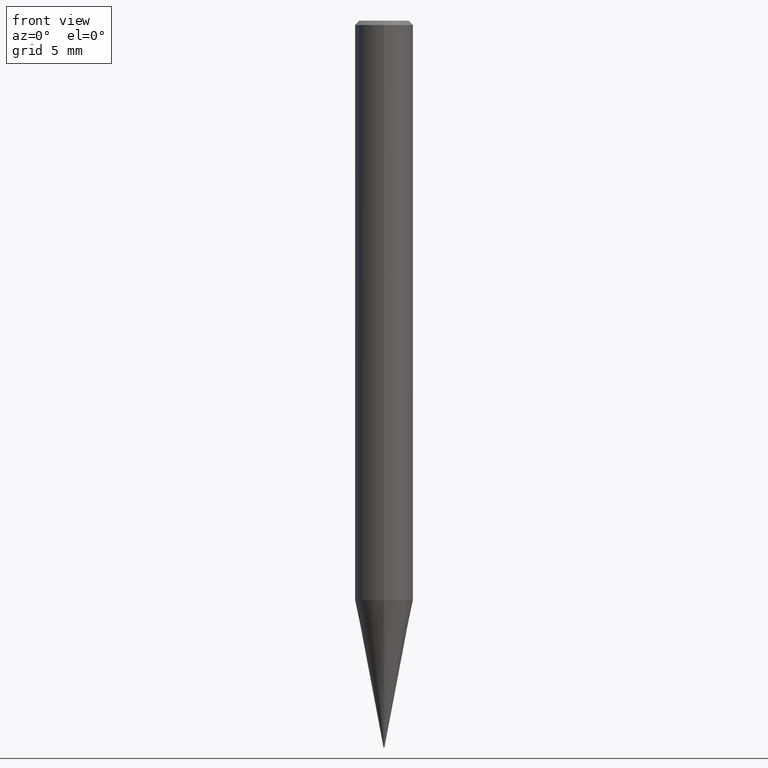
[diagram: clean part render]
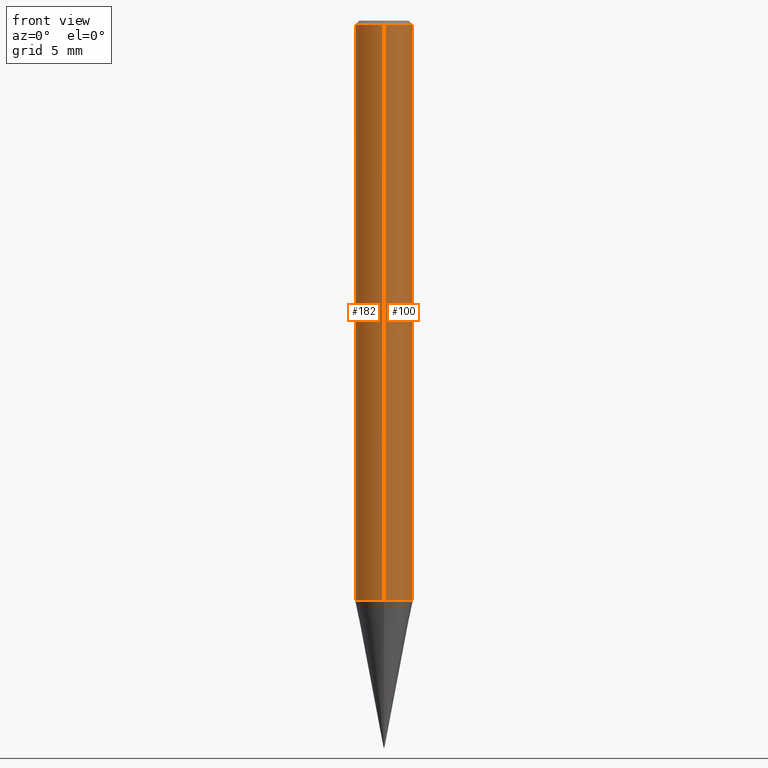
[diagram: same view with one multi-face feature highlighted, each face labeled with its STEP entity id]
A machine part, front view. The highlighted faces form ONE feature: a constant-radius fillet chain: 2 tangent blend faces with common blend radius 2 mm. The faces share edges in the B-rep.
Their STEP definitions:
[1] entity #100 (Cylinder):
#92=EDGE_CURVE('',#166,#150,#219,.T.);
#100=ADVANCED_FACE('',(#227),#228,.T.);
#104=EDGE_CURVE('',#166,#120,#232,.T.);
#106=VERTEX_POINT('',#234);
#120=VERTEX_POINT('',#249);
#124=EDGE_CURVE('',#106,#150,#253,.T.);
#150=VERTEX_POINT('',#285);
#158=EDGE_CURVE('',#120,#106,#293,.T.);
#166=VERTEX_POINT('',#301);
#219=CIRCLE('',#354,2.0);
#227=FACE_OUTER_BOUND('',#364,.T.);
#228=CYLINDRICAL_SURFACE('',#365,2.0);
#232=LINE('',#370,#371);
#234=CARTESIAN_POINT('',(2.44921270764475E-016,-2.0,-39.868));
#249=CARTESIAN_POINT('',(0.0,2.0,-39.868));
#253=LINE('',#396,#397);
#285=CARTESIAN_POINT('',(2.44921270764475E-016,-2.0,-0.299999999999997));
#293=CIRCLE('',#447,2.0);
#301=CARTESIAN_POINT('',(0.0,2.0,-0.299999999999997));
#354=AXIS2_PLACEMENT_3D('',#508,#509,#510);
#364=EDGE_LOOP('',(#517,#518,#519,#520));
#365=AXIS2_PLACEMENT_3D('',#521,#522,#523);
#370=CARTESIAN_POINT('',(-2.44921270764475E-016,2.0,-20.084));
#371=VECTOR('',#524,1.0);
#396=CARTESIAN_POINT('',(2.44921270764475E-016,-2.0,-20.084));
#397=VECTOR('',#540,1.0);
#447=AXIS2_PLACEMENT_3D('',#599,#600,#601);
#508=CARTESIAN_POINT('',(0.0,0.0,-0.299999999999997));
#509=DIRECTION('',(0.0,0.0,-1.0));
#510=DIRECTION('',(0.0,1.0,0.0));
#517=ORIENTED_EDGE('',*,*,#104,.F.);
#518=ORIENTED_EDGE('',*,*,#92,.T.);
#519=ORIENTED_EDGE('',*,*,#124,.F.);
#520=ORIENTED_EDGE('',*,*,#158,.F.);
#521=CARTESIAN_POINT('',(0.0,0.0,-20.084));
#522=DIRECTION('',(-0.0,-0.0,1.0));
#523=DIRECTION('',(0.0,1.0,0.0));
#524=DIRECTION('',(0.0,0.0,-1.0));
#540=DIRECTION('',(-0.0,-0.0,1.0));
#599=CARTESIAN_POINT('',(0.0,0.0,-39.868));
#600=DIRECTION('',(0.0,0.0,-1.0));
#601=DIRECTION('',(0.0,1.0,0.0));
[2] entity #182 (Cylinder):
#94=EDGE_CURVE('',#150,#166,#221,.T.);
#104=EDGE_CURVE('',#166,#120,#232,.T.);
#106=VERTEX_POINT('',#234);
#120=VERTEX_POINT('',#249);
#124=EDGE_CURVE('',#106,#150,#253,.T.);
#146=EDGE_CURVE('',#106,#120,#281,.T.);
#150=VERTEX_POINT('',#285);
#166=VERTEX_POINT('',#301);
#182=ADVANCED_FACE('',(#321),#322,.T.);
#221=CIRCLE('',#357,2.0);
#232=LINE('',#370,#371);
#234=CARTESIAN_POINT('',(2.44921270764475E-016,-2.0,-39.868));
#249=CARTESIAN_POINT('',(0.0,2.0,-39.868));
#253=LINE('',#396,#397);
#281=CIRCLE('',#430,2.0);
#285=CARTESIAN_POINT('',(2.44921270764475E-016,-2.0,-0.299999999999997));
#301=CARTESIAN_POINT('',(0.0,2.0,-0.299999999999997));
#321=FACE_OUTER_BOUND('',#478,.T.);
#322=CYLINDRICAL_SURFACE('',#479,2.0);
#357=AXIS2_PLACEMENT_3D('',#511,#512,#513);
#370=CARTESIAN_POINT('',(-2.44921270764475E-016,2.0,-20.084));
#371=VECTOR('',#524,1.0);
#396=CARTESIAN_POINT('',(2.44921270764475E-016,-2.0,-20.084));
#397=VECTOR('',#540,1.0);
#430=AXIS2_PLACEMENT_3D('',#589,#590,#591);
#478=EDGE_LOOP('',(#641,#642,#643,#644));
#479=AXIS2_PLACEMENT_3D('',#645,#646,#647);
#511=CARTESIAN_POINT('',(0.0,0.0,-0.299999999999997));
#512=DIRECTION('',(0.0,0.0,-1.0));
#513=DIRECTION('',(0.0,1.0,0.0));
#524=DIRECTION('',(0.0,0.0,-1.0));
#540=DIRECTION('',(-0.0,-0.0,1.0));
#589=CARTESIAN_POINT('',(0.0,0.0,-39.868));
#590=DIRECTION('',(0.0,0.0,-1.0));
#591=DIRECTION('',(0.0,1.0,0.0));
#641=ORIENTED_EDGE('',*,*,#104,.T.);
#642=ORIENTED_EDGE('',*,*,#146,.F.);
#643=ORIENTED_EDGE('',*,*,#124,.T.);
#644=ORIENTED_EDGE('',*,*,#94,.T.);
#645=CARTESIAN_POINT('',(0.0,0.0,-20.084));
#646=DIRECTION('',(-0.0,-0.0,1.0));
#647=DIRECTION('',(0.0,1.0,0.0));